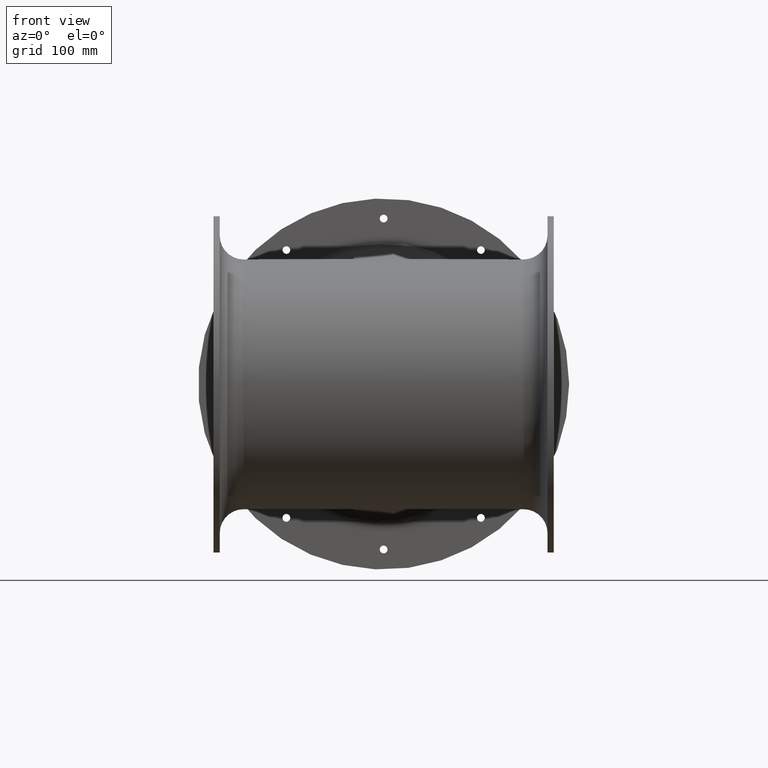
[diagram: clean part render]
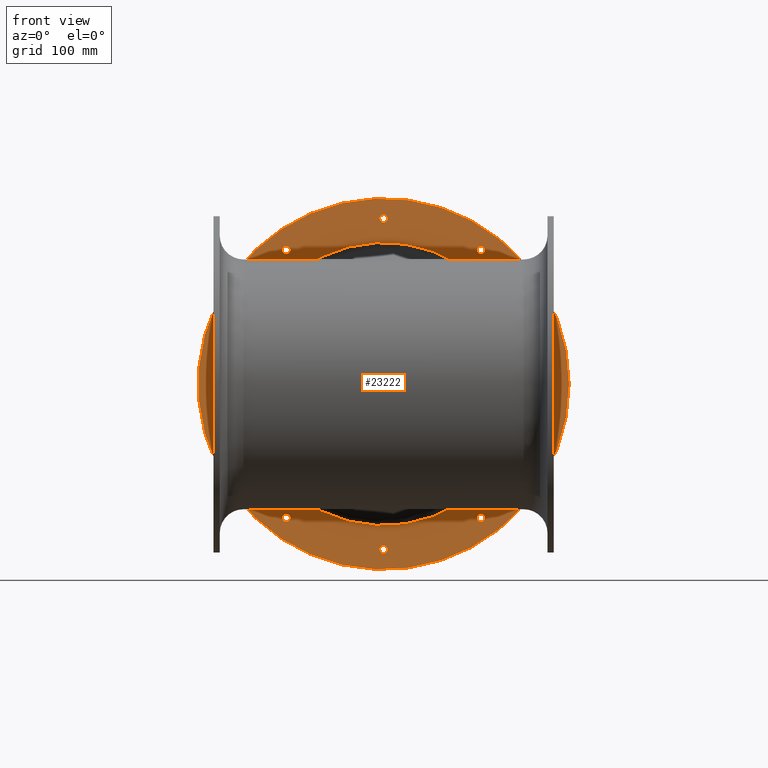
[diagram: same view with one face highlighted and labeled with its STEP entity id]
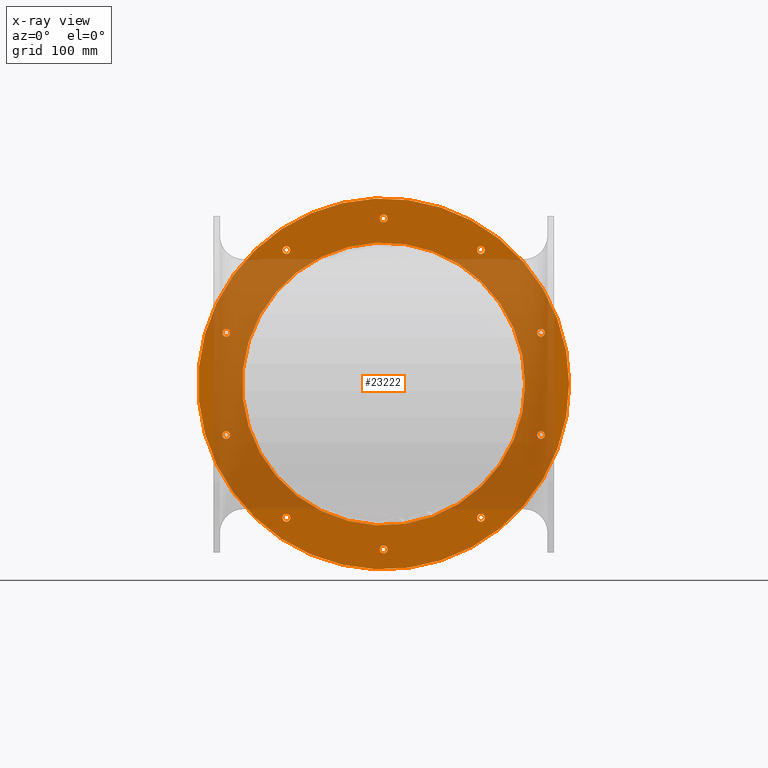
[diagram: x-ray of the same camera — body ghosted, the highlighted face saturated]
A machine part, front view. The second image highlights one B-rep face of the part: STEP entity #23222.
The next image is the same camera in x-ray: the body ghosted, the highlighted face saturated — about 50% of this face is hidden behind the body in this view.
In plain terms, the highlighted planar face has unit normal (0, -1, 0).
Its self-contained STEP definition (entity closure, byte-faithful):
#845=PLANE('',#24665);
#1287=CIRCLE('',#24625,6.25);
#1289=CIRCLE('',#24628,6.25);
#1291=CIRCLE('',#24631,6.25);
#1293=CIRCLE('',#24634,6.25);
#1295=CIRCLE('',#24637,6.25);
#1297=CIRCLE('',#24640,6.25);
#1299=CIRCLE('',#24643,6.25);
#1301=CIRCLE('',#24646,6.25);
#1303=CIRCLE('',#24649,6.25);
#1305=CIRCLE('',#24652,6.25);
#1312=CIRCLE('',#24664,228.805858845394);
#1313=CIRCLE('',#24666,300.);
#4608=FACE_BOUND('',#6240,.T.);
#4609=FACE_BOUND('',#6241,.T.);
#4610=FACE_BOUND('',#6242,.T.);
#4611=FACE_BOUND('',#6243,.T.);
#4612=FACE_BOUND('',#6244,.T.);
#4613=FACE_BOUND('',#6245,.T.);
#4614=FACE_BOUND('',#6246,.T.);
#4615=FACE_BOUND('',#6247,.T.);
#4616=FACE_BOUND('',#6248,.T.);
#4617=FACE_BOUND('',#6249,.T.);
#4618=FACE_BOUND('',#6250,.T.);
#4798=FACE_OUTER_BOUND('',#6239,.T.);
#6239=EDGE_LOOP('',(#14796));
#6240=EDGE_LOOP('',(#14797));
#6241=EDGE_LOOP('',(#14798));
#6242=EDGE_LOOP('',(#14799));
#6243=EDGE_LOOP('',(#14800));
#6244=EDGE_LOOP('',(#14801));
#6245=EDGE_LOOP('',(#14802));
#6246=EDGE_LOOP('',(#14803));
#6247=EDGE_LOOP('',(#14804));
#6248=EDGE_LOOP('',(#14805));
#6249=EDGE_LOOP('',(#14806));
#6250=EDGE_LOOP('',(#14807));
#9112=VERTEX_POINT('',#32983);
#9114=VERTEX_POINT('',#32988);
#9116=VERTEX_POINT('',#32993);
#9118=VERTEX_POINT('',#32998);
#9120=VERTEX_POINT('',#33003);
#9122=VERTEX_POINT('',#33008);
#9124=VERTEX_POINT('',#33013);
#9126=VERTEX_POINT('',#33018);
#9128=VERTEX_POINT('',#33023);
#9130=VERTEX_POINT('',#33028);
#9137=VERTEX_POINT('',#33047);
#9138=VERTEX_POINT('',#33050);
#11301=EDGE_CURVE('',#9112,#9112,#1287,.T.);
#11303=EDGE_CURVE('',#9114,#9114,#1289,.T.);
#11305=EDGE_CURVE('',#9116,#9116,#1291,.T.);
#11307=EDGE_CURVE('',#9118,#9118,#1293,.T.);
#11309=EDGE_CURVE('',#9120,#9120,#1295,.T.);
#11311=EDGE_CURVE('',#9122,#9122,#1297,.T.);
#11313=EDGE_CURVE('',#9124,#9124,#1299,.T.);
#11315=EDGE_CURVE('',#9126,#9126,#1301,.T.);
#11317=EDGE_CURVE('',#9128,#9128,#1303,.T.);
#11319=EDGE_CURVE('',#9130,#9130,#1305,.T.);
#11326=EDGE_CURVE('',#9137,#9137,#1312,.T.);
#11327=EDGE_CURVE('',#9138,#9138,#1313,.T.);
#14796=ORIENTED_EDGE('',*,*,#11327,.F.);
#14797=ORIENTED_EDGE('',*,*,#11301,.T.);
#14798=ORIENTED_EDGE('',*,*,#11303,.T.);
#14799=ORIENTED_EDGE('',*,*,#11305,.T.);
#14800=ORIENTED_EDGE('',*,*,#11307,.T.);
#14801=ORIENTED_EDGE('',*,*,#11309,.T.);
#14802=ORIENTED_EDGE('',*,*,#11311,.T.);
#14803=ORIENTED_EDGE('',*,*,#11313,.T.);
#14804=ORIENTED_EDGE('',*,*,#11315,.T.);
#14805=ORIENTED_EDGE('',*,*,#11317,.T.);
#14806=ORIENTED_EDGE('',*,*,#11319,.T.);
#14807=ORIENTED_EDGE('',*,*,#11326,.F.);
#23222=ADVANCED_FACE('',(#4798,#4608,#4609,#4610,#4611,#4612,#4613,#4614,
#4615,#4616,#4617,#4618),#845,.T.);
#24625=AXIS2_PLACEMENT_3D('',#32984,#26293,#26294);
#24628=AXIS2_PLACEMENT_3D('',#32989,#26299,#26300);
#24631=AXIS2_PLACEMENT_3D('',#32994,#26305,#26306);
#24634=AXIS2_PLACEMENT_3D('',#32999,#26311,#26312);
#24637=AXIS2_PLACEMENT_3D('',#33004,#26317,#26318);
#24640=AXIS2_PLACEMENT_3D('',#33009,#26323,#26324);
#24643=AXIS2_PLACEMENT_3D('',#33014,#26329,#26330);
#24646=AXIS2_PLACEMENT_3D('',#33019,#26335,#26336);
#24649=AXIS2_PLACEMENT_3D('',#33024,#26341,#26342);
#24652=AXIS2_PLACEMENT_3D('',#33029,#26347,#26348);
#24664=AXIS2_PLACEMENT_3D('',#33048,#26371,#26372);
#24665=AXIS2_PLACEMENT_3D('',#33049,#26373,#26374);
#24666=AXIS2_PLACEMENT_3D('',#33051,#26375,#26376);
#26293=DIRECTION('center_axis',(-2.75075785414576E-15,1.,-2.09740053427586E-14));
#26294=DIRECTION('ref_axis',(-0.809016994374948,-1.45536208733913E-14,-0.587785252292472));
#26299=DIRECTION('center_axis',(-2.75075785414576E-15,1.,-2.09740053427586E-14));
#26300=DIRECTION('ref_axis',(-0.309016994374948,-2.07974953783814E-14,-0.951056516295153));
#26305=DIRECTION('center_axis',(-2.75075785414576E-15,1.,-2.09740053427586E-14));
#26306=DIRECTION('ref_axis',(0.309016994374947,-1.90974335296986E-14,-0.951056516295154));
#26311=DIRECTION('center_axis',(-2.75075785414576E-15,1.,-2.09740053427586E-14));
#26312=DIRECTION('ref_axis',(0.809016994374947,-1.01028011705628E-14,-0.587785252292474));
#26317=DIRECTION('center_axis',(-2.75075785414576E-15,1.,-2.09740053427586E-14));
#26318=DIRECTION('ref_axis',(1.,2.75075785414574E-15,-9.97823151778132E-16));
#26323=DIRECTION('center_axis',(-2.75075785414576E-15,1.,-2.09740053427586E-14));
#26324=DIRECTION('ref_axis',(0.809016994374948,1.45536208733913E-14,0.587785252292473));
#26329=DIRECTION('center_axis',(-2.75075785414576E-15,1.,-2.09740053427586E-14));
#26330=DIRECTION('ref_axis',(0.309016994374948,2.07974953783814E-14,0.951056516295153));
#26335=DIRECTION('center_axis',(-2.75075785414576E-15,1.,-2.09740053427586E-14));
#26336=DIRECTION('ref_axis',(-0.309016994374946,1.90974335296986E-14,0.951056516295154));
#26341=DIRECTION('center_axis',(-2.75075785414576E-15,1.,-2.09740053427586E-14));
#26342=DIRECTION('ref_axis',(-0.809016994374947,1.01028011705628E-14,0.587785252292474));
#26347=DIRECTION('center_axis',(-2.75075785414576E-15,1.,-2.09740053427586E-14));
#26348=DIRECTION('ref_axis',(-1.,-2.75075785414574E-15,9.97823151778132E-16));
#26371=DIRECTION('center_axis',(2.75075785414576E-15,-1.,2.09740053427586E-14));
#26372=DIRECTION('ref_axis',(-1.,-2.75075785414574E-15,9.97823151778132E-16));
#26373=DIRECTION('center_axis',(2.75075785414576E-15,-1.,2.09740053427586E-14));
#26374=DIRECTION('ref_axis',(-1.,0.,0.));
#26375=DIRECTION('center_axis',(-2.75075785414576E-15,1.,-2.09740053427586E-14));
#26376=DIRECTION('ref_axis',(1.,2.75075785414574E-15,-9.97823151778132E-16));
#32983=CARTESIAN_POINT('',(-457.223551084444,1042.69149569065,73.3033511147327));
#32984=CARTESIAN_POINT('Origin',(-462.279907299288,1042.69149569065,69.6296932879048));
#32988=CARTESIAN_POINT('',(-363.152534227254,1042.69149569065,209.352636858797));
#32989=CARTESIAN_POINT('Origin',(-365.083890442098,1042.69149569065,203.408533631952));
#32993=CARTESIAN_POINT('',(-367.015246656941,1042.69149569065,374.71237747513));
#32994=CARTESIAN_POINT('Origin',(-365.083890442098,1042.69149569065,368.768274248286));
#32998=CARTESIAN_POINT('',(-467.336263514131,1042.69149569066,506.220772419161));
#32999=CARTESIAN_POINT('Origin',(-462.279907299287,1042.69149569066,502.547114592333));
#33003=CARTESIAN_POINT('',(-625.796366145328,1042.69149569066,553.646084628214));
#33004=CARTESIAN_POINT('Origin',(-619.546366145328,1042.69149569066,553.646084628214));
#33008=CARTESIAN_POINT('',(-781.869181206212,1042.69149569065,498.873456765505));
#33009=CARTESIAN_POINT('Origin',(-776.812824991368,1042.69149569065,502.547114592333));
#33013=CARTESIAN_POINT('',(-875.940198063402,1042.69149569065,362.824171021441));
#33014=CARTESIAN_POINT('Origin',(-874.008841848558,1042.69149569065,368.768274248286));
#33018=CARTESIAN_POINT('',(-872.077485633715,1042.69149569065,197.464430405108));
#33019=CARTESIAN_POINT('Origin',(-874.008841848558,1042.69149569065,203.408533631952));
#33023=CARTESIAN_POINT('',(-771.756468776525,1042.69149569065,65.956035461077));
#33024=CARTESIAN_POINT('Origin',(-776.812824991369,1042.69149569065,69.629693287905));
#33028=CARTESIAN_POINT('',(-613.296366145328,1042.69149569065,18.5307232520245));
#33029=CARTESIAN_POINT('Origin',(-619.546366145328,1042.69149569064,18.5307232520245));
#33047=CARTESIAN_POINT('',(-390.740507299934,1042.69149569065,286.088403940119));
#33048=CARTESIAN_POINT('Origin',(-619.546366145328,1042.69149569065,286.088403940119));
#33049=CARTESIAN_POINT('Origin',(-361.074465264599,1042.69149569065,286.088403940119));
#33050=CARTESIAN_POINT('',(-319.546366145328,1042.69149569065,286.088403940119));
#33051=CARTESIAN_POINT('Origin',(-619.546366145328,1042.69149569065,286.088403940119));